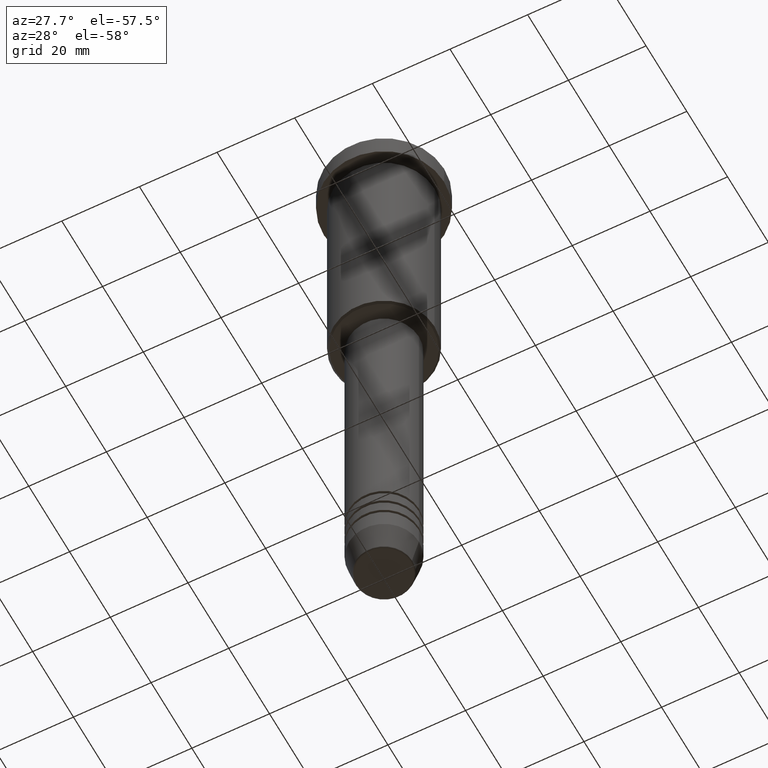
[diagram: clean part render]
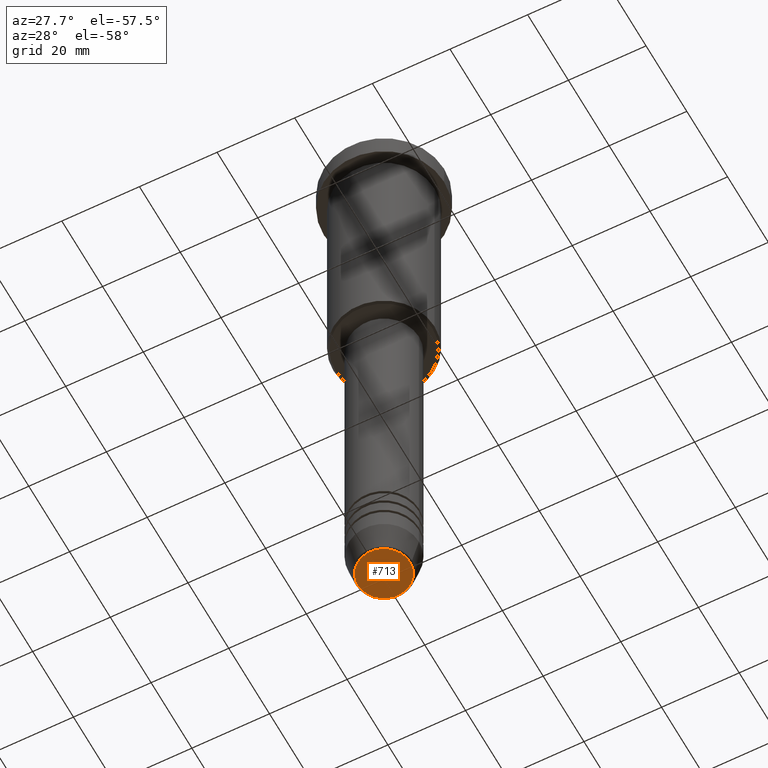
[diagram: same view with one face highlighted and labeled with its STEP entity id]
A machine part, auxiliary view. The second image highlights one B-rep face of the part: STEP entity #713.
In plain terms, the highlighted planar face has unit normal (0, -0, 1).
Its self-contained STEP definition (entity closure, byte-faithful):
#110 = CARTESIAN_POINT ( 'NONE',  ( -6.740692158992658278, 8.550696569392685681E-16, -161.0000000000000284 ) ) ;
#197 = DIRECTION ( 'NONE',  ( 1.000000000000000000, 0.000000000000000000, 0.000000000000000000 ) ) ;
#211 = CARTESIAN_POINT ( 'NONE',  ( 0.000000000000000000, 0.000000000000000000, -161.0000000000000284 ) ) ;
#305 = DIRECTION ( 'NONE',  ( 0.000000000000000000, -0.000000000000000000, 1.000000000000000000 ) ) ;
#342 = DIRECTION ( 'NONE',  ( 1.000000000000000000, 0.000000000000000000, 0.000000000000000000 ) ) ;
#392 = EDGE_CURVE ( 'NONE', #692, #764, #1049, .T. ) ;
#408 = CARTESIAN_POINT ( 'NONE',  ( 0.000000000000000000, 0.000000000000000000, -161.0000000000000284 ) ) ;
#490 = FACE_OUTER_BOUND ( 'NONE', #730, .T. ) ;
#505 = AXIS2_PLACEMENT_3D ( 'NONE', #590, #858, #1115 ) ;
#528 = CIRCLE ( 'NONE', #775, 6.740692158992658278 ) ;
#552 = AXIS2_PLACEMENT_3D ( 'NONE', #211, #305, #197 ) ;
#590 = CARTESIAN_POINT ( 'NONE',  ( 0.000000000000000000, 0.000000000000000000, -161.0000000000000284 ) ) ;
#663 = ORIENTED_EDGE ( 'NONE', *, *, #829, .T. ) ;
#674 = CARTESIAN_POINT ( 'NONE',  ( 6.740692158992658278, 0.000000000000000000, -161.0000000000000284 ) ) ;
#692 = VERTEX_POINT ( 'NONE', #674 ) ;
#713 = ADVANCED_FACE ( 'NONE', ( #490 ), #850, .F. ) ;
#730 = EDGE_LOOP ( 'NONE', ( #860, #663 ) ) ;
#764 = VERTEX_POINT ( 'NONE', #110 ) ;
#775 = AXIS2_PLACEMENT_3D ( 'NONE', #408, #1140, #342 ) ;
#829 = EDGE_CURVE ( 'NONE', #764, #692, #528, .T. ) ;
#850 = PLANE ( 'NONE',  #552 ) ;
#858 = DIRECTION ( 'NONE',  ( 0.000000000000000000, 0.000000000000000000, -1.000000000000000000 ) ) ;
#860 = ORIENTED_EDGE ( 'NONE', *, *, #392, .T. ) ;
#1049 = CIRCLE ( 'NONE', #505, 6.740692158992658278 ) ;
#1115 = DIRECTION ( 'NONE',  ( 1.000000000000000000, 0.000000000000000000, 0.000000000000000000 ) ) ;
#1140 = DIRECTION ( 'NONE',  ( 0.000000000000000000, 0.000000000000000000, -1.000000000000000000 ) ) ;